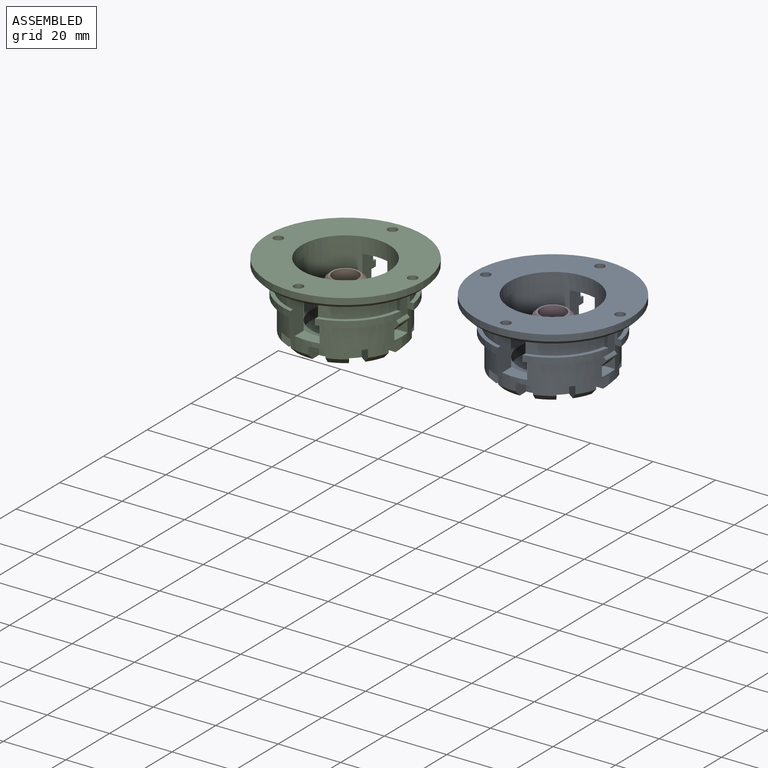
[diagram: assembled view]
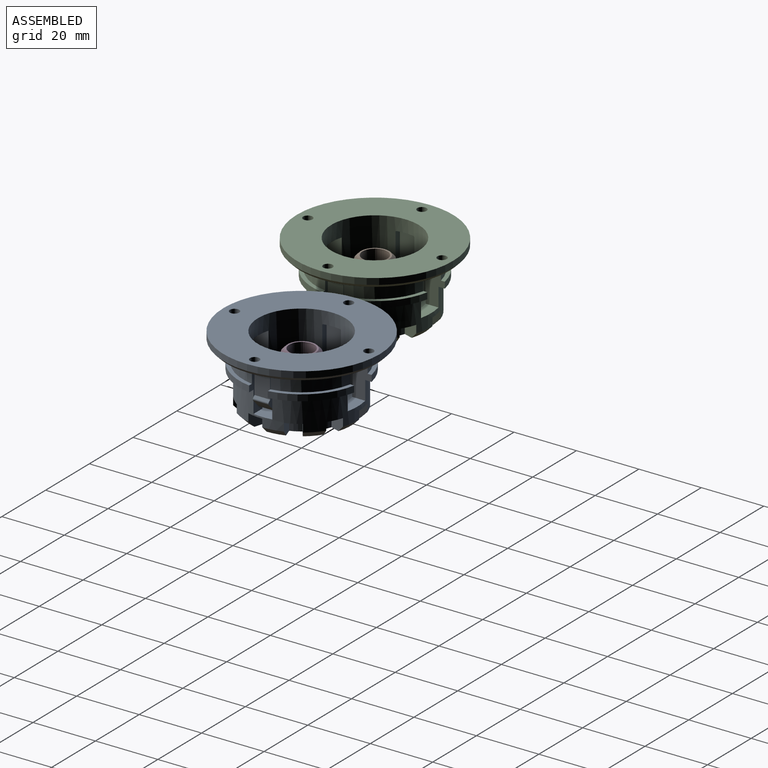
[diagram: assembled view, second angle]
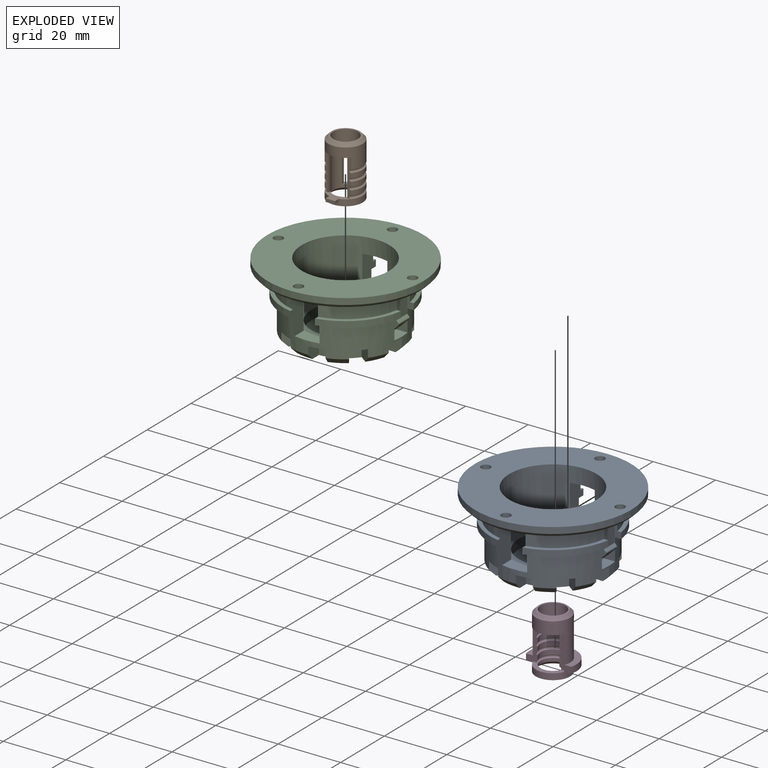
[diagram: exploded view]
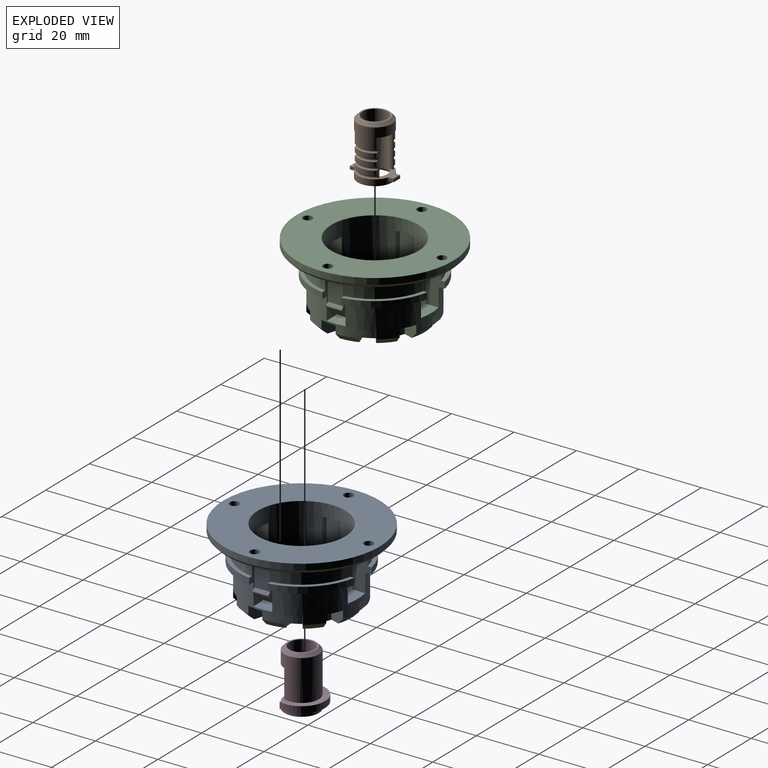
[diagram: exploded view, second angle]
ASSEMBLY  parts=4 mates=2
PART A: 125 faces, bbox 50.1x50.1x23.1 mm
  f0: cylinder r=14mm len=28mm, axis (0,0,-1), area 1219.5mm2, adj f11,f58,f61,f80,f81,f82,f83,f84
  f1: cylinder r=20mm len=16.6mm, axis (0,0,-1), area 48.8mm2, adj f2,f3,f80,f124
  f2: plane 16.6x15.77mm, normal (0,0,1), area 29.2mm2, adj f1,f16,f80,f124
  f3: plane 16.6x15.77mm, normal (0,0,-1), area 45.6mm2, adj f1,f12,f80,f124
  f4: cylinder r=20mm len=16.6mm, axis (0,0,-1), area 48.8mm2, adj f6,f7,f81,f117
  f5: cylinder r=20mm len=16.6mm, axis (0,0,-1), area 48.8mm2, adj f63,f64,f84,f118
  f6: plane 16.6x15.77mm, normal (0,0,1), area 29.2mm2, adj f4,f16,f81,f117
  f7: plane 16.6x15.77mm, normal (0,0,-1), area 45.6mm2, adj f4,f12,f81,f117
  f8: cylinder r=5.5mm len=10.58mm, axis (0,0,-1), area 28.5mm2, adj f9,f10,f111,f115
  f9: plane 32x32mm, normal (0,0,-1), area 580.2mm2, adj f8,f17,f18,f19,f20,f22,f23,f24
  f10: plane 22x22mm, normal (0,0,1), area 275.7mm2, adj f8,f17,f59,f111,f112,f113,f114,f115
  f11: plane 5.5x1.27mm, normal (0,0,-1), area 6mm2, adj f0,f93,f103,f104
  f12: cylinder r=18mm len=36mm, axis (0,0,-1), area 824.4mm2, adj f3,f7,f15,f18,f20,f21,f22,f24
  f13: cylinder r=20mm len=16.6mm, axis (0,0,-1), area 48.8mm2, adj f14,f15,f83,f123
  f14: plane 16.6x15.77mm, normal (0,0,1), area 29.2mm2, adj f13,f16,f83,f123
  f15: plane 16.6x15.77mm, normal (0,0,-1), area 45.6mm2, adj f12,f13,f83,f123
  f16: cylinder r=18.75mm len=37.5mm, axis (0,0,-1), area 582.2mm2, adj f2,f6,f14,f62,f63,f80,f81,f83
  f17: cylinder r=5.5mm len=10.58mm, axis (0,0,-1), area 28.5mm2, adj f9,f10,f113,f116
  f18: plane 5x4.5mm, normal (0,-1,0), area 20.5mm2, adj f9,f12,f19,f21,f71
  f19: cylinder r=13mm len=4.5mm, axis (0,0,-1), area 15.9mm2, adj f9,f18,f20,f21
  f20: plane 4.79x4.5mm, normal (0.29,0.96,0), area 20.5mm2, adj f9,f12,f19,f21,f70
  f21: plane 5.48x4.95mm, normal (0,0,-1), area 21.4mm2, adj f12,f18,f19,f20
  f22: plane 4.5x4.05mm, normal (0.59,-0.81,0), area 20.5mm2, adj f9,f12,f23,f25,f72
  f23: cylinder r=13mm len=4.5mm, axis (0,0,-1), area 15.9mm2, adj f9,f22,f24,f25
  f24: plane 4.73x4.5mm, normal (-0.33,0.94,0), area 20.5mm2, adj f9,f12,f23,f25,f71
  f25: plane 6.39x6.05mm, normal (0,0,-1), area 21.4mm2, adj f12,f22,f23,f24
  f26: plane 4.76x4.5mm, normal (0.95,-0.31,0), area 20.5mm2, adj f9,f12,f27,f29,f73
  f27: cylinder r=13mm len=4.5mm, axis (0,0,-1), area 15.9mm2, adj f9,f26,f28,f29
  f28: plane 4.5x4.1mm, normal (-0.82,0.57,0), area 20.5mm2, adj f9,f12,f27,f29,f72
  f29: plane 6.29x6.04mm, normal (0,0,-1), area 21.4mm2, adj f12,f26,f27,f28
  f30: plane 4.76x4.5mm, normal (0.95,0.31,0), area 20.5mm2, adj f9,f12,f31,f33,f74
  f31: cylinder r=13mm len=4.5mm, axis (0,0,-1), area 15.9mm2, adj f9,f30,f32,f33
  f32: plane 5x4.5mm, normal (-1,-0.02,0), area 20.5mm2, adj f9,f12,f31,f33,f73
  f33: plane 5.63x5.02mm, normal (0,0,-1), area 21.4mm2, adj f12,f30,f31,f32
  f34: plane 4.5x4.05mm, normal (0.59,0.81,0), area 20.5mm2, adj f9,f12,f35,f37,f75
  f35: cylinder r=13mm len=4.5mm, axis (0,0,-1), area 15.9mm2, adj f9,f34,f36,f37
  f36: plane 4.5x3.99mm, normal (-0.8,-0.6,0), area 20.5mm2, adj f9,f12,f35,f37,f74
  f37: plane 6.54x6.49mm, normal (0,0,-1), area 21.4mm2, adj f12,f34,f35,f36
  f38: plane 5x4.5mm, normal (0,1,0), area 20.5mm2, adj f9,f12,f39,f41,f76
  f39: cylinder r=13mm len=4.5mm, axis (0,0,-1), area 15.9mm2, adj f9,f38,f40,f41
  f40: plane 4.79x4.5mm, normal (-0.29,-0.96,0), area 20.5mm2, adj f9,f12,f39,f41,f75
  f41: plane 5.48x4.95mm, normal (0,0,-1), area 21.4mm2, adj f12,f38,f39,f40
  f42: plane 4.5x4.05mm, normal (-0.59,0.81,0), area 20.5mm2, adj f9,f12,f43,f45,f77
  f43: cylinder r=13mm len=4.5mm, axis (0,0,-1), area 15.9mm2, adj f9,f42,f44,f45
  f44: plane 4.73x4.5mm, normal (0.33,-0.94,0), area 20.5mm2, adj f9,f12,f43,f45,f76
  f45: plane 6.39x6.05mm, normal (0,0,-1), area 21.4mm2, adj f12,f42,f43,f44
  f46: plane 4.76x4.5mm, normal (-0.95,0.31,0), area 20.5mm2, adj f9,f12,f47,f49,f78
  f47: cylinder r=13mm len=4.5mm, axis (0,0,-1), area 15.9mm2, adj f9,f46,f48,f49
  f48: plane 4.5x4.1mm, normal (0.82,-0.57,0), area 20.5mm2, adj f9,f12,f47,f49,f77
  f49: plane 6.29x6.04mm, normal (0,0,-1), area 21.4mm2, adj f12,f46,f47,f48
  f50: plane 4.76x4.5mm, normal (-0.95,-0.31,0), area 20.5mm2, adj f9,f12,f51,f53,f79
  f51: cylinder r=13mm len=4.5mm, axis (0,0,-1), area 15.9mm2, adj f9,f50,f52,f53
  f52: plane 5x4.5mm, normal (1,0.02,0), area 20.5mm2, adj f9,f12,f51,f53,f78
  f53: plane 5.63x5.02mm, normal (0,0,-1), area 21.4mm2, adj f12,f50,f51,f52
  f54: plane 4.5x4.05mm, normal (-0.59,-0.81,0), area 20.5mm2, adj f9,f12,f55,f57,f70
  f55: cylinder r=13mm len=4.5mm, axis (0,0,-1), area 15.9mm2, adj f9,f54,f56,f57
  f56: plane 4.5x3.99mm, normal (0.8,0.6,0), area 20.5mm2, adj f9,f12,f55,f57,f79
  f57: plane 6.54x6.49mm, normal (0,0,-1), area 21.4mm2, adj f12,f54,f55,f56
  f58: plane 36x28mm, normal (0,0,1), area 283.9mm2, adj f0,f12,f59,f80,f81,f83,f84
  f59: cylinder r=11mm len=22mm, axis (0,0,-1), area 207.3mm2, adj f10,f58
  f60: cylinder r=25mm len=50mm, axis (0,0,-1), area 314.2mm2, adj f61,f69
  f61: plane 50x50mm, normal (0,0,1), area 1319.5mm2, adj f0,f60,f65,f66,f67,f68
  f62: plane 48x48mm, normal (0,0,-1), area 626.6mm2, adj f16,f69,f107,f108,f109,f110
  f63: plane 16.6x15.77mm, normal (0,0,1), area 29.2mm2, adj f5,f16,f84,f118
  f64: plane 16.6x15.77mm, normal (0,0,-1), area 45.6mm2, adj f5,f12,f84,f118
  f65: cylinder r=1.5mm len=3mm, axis (0,0,-1), area 18.8mm2, adj f61,f107
  f66: cylinder r=1.5mm len=3mm, axis (0,0,-1), area 18.8mm2, adj f61,f108
  f67: cylinder r=1.5mm len=3mm, axis (0,0,-1), area 18.8mm2, adj f61,f109
  f68: cylinder r=1.5mm len=3mm, axis (0,0,-1), area 18.8mm2, adj f61,f110
  f69: cone r=25mm half-angle=45deg, axis (0,0,1), area 217.7mm2, adj f60,f62
  f70: cone r=18mm half-angle=45deg, axis (0,0,1), area 16.9mm2, adj f9,f12,f20,f54
  f71: cone r=18mm half-angle=45deg, axis (0,0,1), area 16.9mm2, adj f9,f12,f18,f24
  f72: cone r=18mm half-angle=45deg, axis (0,0,1), area 16.9mm2, adj f9,f12,f22,f28
  f73: cone r=18mm half-angle=45deg, axis (0,0,1), area 16.9mm2, adj f9,f12,f26,f32
  f74: cone r=18mm half-angle=45deg, axis (0,0,1), area 16.9mm2, adj f9,f12,f30,f36
  f75: cone r=18mm half-angle=45deg, axis (0,0,1), area 16.9mm2, adj f9,f12,f34,f40
  f76: cone r=18mm half-angle=45deg, axis (0,0,1), area 16.9mm2, adj f9,f12,f38,f44
  f77: cone r=18mm half-angle=45deg, axis (0,0,1), area 16.9mm2, adj f9,f12,f42,f48
  f78: cone r=18mm half-angle=45deg, axis (0,0,1), area 16.9mm2, adj f9,f12,f46,f52
  f79: cone r=18mm half-angle=45deg, axis (0,0,1), area 16.9mm2, adj f9,f12,f50,f56
  f80: plane 13.75x6.1mm, normal (0,1,0), area 63.7mm2, adj f0,f1,f2,f3,f12,f16,f58,f103
  f81: plane 13.75x6.1mm, normal (0,-1,0), area 63.7mm2, adj f0,f4,f6,f7,f12,f16,f58,f104
  f82: plane 5.5x1.27mm, normal (0,0,-1), area 6mm2, adj f0,f88,f105,f106
  f83: plane 13.75x6.1mm, normal (0,1,0), area 63.7mm2, adj f0,f12,f13,f14,f15,f16,f58,f105
  f84: plane 13.75x6.1mm, normal (0,-1,0), area 63.7mm2, adj f0,f5,f12,f16,f58,f63,f64,f106
  f85: plane 12.11x3.86mm, normal (0,-1,0), area 35.4mm2, adj f87,f88,f89,f95,f96,f100,f102,f105
  f86: plane 12.1x3.85mm, normal (0,1,0), area 35.4mm2, adj f87,f88,f89,f95,f96,f100,f102,f106
  f87: plane 5.89x5mm, normal (1,0,0), area 28.7mm2, adj f85,f86,f96,f102
  f88: plane 12.29x5.5mm, normal (-1,0,0), area 61.5mm2, adj f82,f85,f86,f89,f105,f106
  f89: plane 5x1mm, normal (0,0,-1), area 5mm2, adj f85,f86,f88,f95
  f90: plane 12.1x3.85mm, normal (0,-1,0), area 35.4mm2, adj f92,f93,f94,f97,f98,f99,f101,f103
  f91: plane 12.11x3.86mm, normal (0,1,0), area 35.4mm2, adj f92,f93,f94,f97,f98,f99,f101,f104
  f92: plane 5.89x5mm, normal (-1,0,0), area 28.7mm2, adj f90,f91,f97,f101
  f93: plane 12.29x5.5mm, normal (1,0,0), area 61.5mm2, adj f11,f90,f91,f94,f103,f104
  f94: plane 5x1mm, normal (0,0,-1), area 5mm2, adj f90,f91,f93,f98
  f95: plane 5x2.65mm, normal (0.71,0,-0.71), area 18.7mm2, adj f85,f86,f89,f100
  f96: plane 5x0.65mm, normal (0.71,0,0.71), area 4.6mm2, adj f85,f86,f87,f100
  f97: plane 5x0.65mm, normal (-0.71,0,0.71), area 4.6mm2, adj f90,f91,f92,f99
  f98: plane 5x2.65mm, normal (-0.71,0,-0.71), area 18.7mm2, adj f90,f91,f94,f99
  f99: cylinder r=0.5mm len=5mm, axis (0,1,0), area 3.9mm2, adj f90,f91,f97,f98
  f100: cylinder r=0.5mm len=5mm, axis (0,1,0), area 3.9mm2, adj f85,f86,f95,f96
  f101: bspline ~6.82x2.63mm, area 13.5mm2, adj f16,f90,f91,f92,f103,f104
  f102: bspline ~6.82x2.63mm, area 13.5mm2, adj f16,f85,f86,f87,f105,f106
  f103: cylinder r=0.25mm len=4.87mm, axis (-1,0,0), area 3.3mm2, adj f0,f11,f16,f80,f90,f93,f101
  f104: cylinder r=0.25mm len=4.87mm, axis (1,0,0), area 3.3mm2, adj f0,f11,f16,f81,f91,f93,f101
  f105: cylinder r=0.25mm len=4.87mm, axis (-1,0,0), area 3.3mm2, adj f0,f16,f82,f83,f85,f88,f102
  f106: cylinder r=0.25mm len=4.87mm, axis (1,0,0), area 3.3mm2, adj f0,f16,f82,f84,f86,f88,f102
  f107: cone r=1.5mm half-angle=45deg, axis (0,0,-1), area 17.8mm2, adj f62,f65
  f108: cone r=1.5mm half-angle=45deg, axis (0,0,-1), area 17.8mm2, adj f62,f66
  f109: cone r=1.5mm half-angle=45deg, axis (0,0,-1), area 17.8mm2, adj f62,f67
  f110: cone r=1.5mm half-angle=45deg, axis (0,0,-1), area 17.8mm2, adj f62,f68
  f111: plane 2x1.71mm, normal (-1,0,0), area 3.4mm2, adj f8,f9,f10,f112
  f112: plane 3x2mm, normal (0,-1,0), area 6mm2, adj f9,f10,f111,f113
  f113: plane 2x1.71mm, normal (1,0,0), area 3.4mm2, adj f9,f10,f17,f112
  f114: plane 3x2mm, normal (0,1,0), area 6mm2, adj f9,f10,f115,f116
  f115: plane 2x1.71mm, normal (-1,0,0), area 3.4mm2, adj f8,f9,f10,f114
  f116: plane 2x1.71mm, normal (1,0,0), area 3.4mm2, adj f9,f10,f17,f114
  f117: plane 12x6.18mm, normal (1,0,0), area 56.8mm2, adj f0,f4,f6,f7,f12,f16,f119,f120
  f118: plane 12x6.18mm, normal (-1,0,0), area 56.8mm2, adj f0,f5,f12,f16,f63,f64,f119,f120
  f119: plane 8x5.33mm, normal (0,0,-1), area 38.4mm2, adj f0,f16,f117,f118
  f120: plane 8x4.58mm, normal (0,0,1), area 32.3mm2, adj f0,f12,f117,f118
  f121: plane 8x4.58mm, normal (0,0,1), area 32.3mm2, adj f0,f12,f123,f124
  f122: plane 8x5.33mm, normal (0,0,-1), area 38.4mm2, adj f0,f16,f123,f124
  f123: plane 12x6.18mm, normal (-1,0,0), area 56.8mm2, adj f0,f12,f13,f14,f15,f16,f121,f122
  f124: plane 12x6.18mm, normal (1,0,0), area 56.8mm2, adj f0,f1,f2,f3,f12,f16,f121,f122
PART B: 41 faces, bbox 12.7x14x18 mm
  f0: cylinder r=5.5mm len=11mm, axis (0,0,-1), area 63mm2, adj f9,f16,f22,f28,f32,f33,f34,f36
  f1: cylinder r=5.5mm len=7mm, axis (0,0,-1), area 11.4mm2, adj f13,f19,f31,f32
  f2: cylinder r=5.5mm len=7mm, axis (0,0,-1), area 11.4mm2, adj f14,f20,f27,f28
  f3: cylinder r=5.5mm len=7mm, axis (0,0,-1), area 11.4mm2, adj f13,f19,f30,f31
  f4: cylinder r=5.5mm len=7mm, axis (0,0,-1), area 11.4mm2, adj f14,f20,f26,f27
  f5: cylinder r=5.5mm len=7mm, axis (0,0,-1), area 11.4mm2, adj f13,f19,f29,f30
  f6: cylinder r=5.5mm len=7mm, axis (0,0,-1), area 11.4mm2, adj f14,f20,f25,f26
  f7: cylinder r=5.5mm len=11mm, axis (0,0,-1), area 156.8mm2, adj f12,f13,f14,f15,f19,f20,f21,f25
  f8: plane 9x9mm, normal (0,0,1), area 13.4mm2, adj f10,f12
  f9: plane 11x11mm, normal (0,0,-1), area 16.5mm2, adj f0,f11
  f10: cylinder r=4mm len=17mm, axis (0,0,-1), area 264.4mm2, adj f8,f11,f15,f16,f17,f18,f21,f22
  f11: cone r=5mm half-angle=45deg, axis (0,0,-1), area 40mm2, adj f9,f10
  f12: cone r=4.5mm half-angle=45deg, axis (0,0,-1), area 44.4mm2, adj f7,f8
  f13: plane 12x1.24mm, normal (0,1,0), area 12.8mm2, adj f1,f3,f5,f7,f15,f16,f17,f29
  f14: plane 12x1.24mm, normal (0,1,0), area 12.8mm2, adj f2,f4,f6,f7,f15,f16,f18,f25
  f15: plane 8.49x2.85mm, normal (0,0,-1), area 11.3mm2, adj f7,f10,f13,f14,f17,f18
  f16: plane 8.49x4.35mm, normal (0,0,1), area 16mm2, adj f0,f10,f13,f14,f17,f18,f37,f38
  f17: plane 12x0.85mm, normal (-1,0,0), area 10.3mm2, adj f10,f13,f15,f16
  f18: plane 12x0.85mm, normal (1,0,0), area 10.3mm2, adj f10,f14,f15,f16
  f19: plane 12x1.24mm, normal (0,-1,0), area 12.8mm2, adj f1,f3,f5,f7,f21,f22,f23,f29
  f20: plane 12x1.24mm, normal (0,-1,0), area 12.8mm2, adj f2,f4,f6,f7,f21,f22,f24,f25
  f21: plane 8.49x2.85mm, normal (0,0,-1), area 11.3mm2, adj f7,f10,f19,f20,f23,f24
  f22: plane 8.49x4.35mm, normal (0,0,1), area 16mm2, adj f0,f10,f19,f20,f23,f24,f33,f34
  f23: plane 12x0.85mm, normal (-1,0,0), area 10.3mm2, adj f10,f19,f21,f22
  f24: plane 12x0.85mm, normal (1,0,0), area 10.3mm2, adj f10,f20,f21,f22
  f25: torus R=5.5mm, axis (0,0,-1), area 12.1mm2, adj f6,f7,f14,f20
  f26: torus R=5.5mm, axis (0,0,-1), area 12.1mm2, adj f4,f6,f14,f20
  f27: torus R=5.5mm, axis (0,0,-1), area 12.1mm2, adj f2,f4,f14,f20
  f28: torus R=5.5mm, axis (0,0,-1), area 12.1mm2, adj f0,f2,f14,f20
  f29: torus R=5.5mm, axis (0,0,-1), area 12.1mm2, adj f5,f7,f13,f19
  f30: torus R=5.5mm, axis (0,0,-1), area 12.1mm2, adj f3,f5,f13,f19
  f31: torus R=5.5mm, axis (0,0,-1), area 12.1mm2, adj f1,f3,f13,f19
  f32: torus R=5.5mm, axis (0,0,-1), area 12.1mm2, adj f0,f1,f13,f19
  f33: plane 1.71x1mm, normal (1,0,0), area 1.7mm2, adj f0,f22,f35,f36
  f34: plane 1.71x1mm, normal (-1,0,0), area 1.7mm2, adj f0,f22,f35,f36
  f35: plane 3x1mm, normal (0,-1,0), area 3mm2, adj f22,f33,f34,f36
  f36: plane 3x1.71mm, normal (0,0,-1), area 4.7mm2, adj f0,f33,f34,f35
  f37: plane 1.71x1mm, normal (1,0,0), area 1.7mm2, adj f0,f16,f39,f40
  f38: plane 1.71x1mm, normal (-1,0,0), area 1.7mm2, adj f0,f16,f39,f40
  f39: plane 3x1mm, normal (0,1,0), area 3mm2, adj f16,f37,f38,f40
  f40: plane 3x1.71mm, normal (0,0,-1), area 4.7mm2, adj f0,f37,f38,f39
PART C: same geometry as A
PART D: 24 faces, bbox 15x13x18 mm
  f0: cylinder r=5.5mm len=11mm, axis (0,0,-1), area 69.2mm2, adj f12,f16,f17,f18,f21,f22,f23
  f1: cylinder r=4mm len=8mm, axis (0,0,-1), area 167.6mm2, adj f2,f11,f15,f16,f17
  f2: torus R=4mm, axis (0,0,-1), area 27.8mm2, adj f1,f3,f16,f17
  f3: cylinder r=4mm len=8mm, axis (0,0,-1), area 25.1mm2, adj f2,f4,f16,f17
  f4: torus R=4mm, axis (0,0,-1), area 27.8mm2, adj f3,f5,f16,f17
  f5: cylinder r=4mm len=8mm, axis (0,0,-1), area 25.1mm2, adj f4,f6,f16,f17
  f6: torus R=4mm, axis (0,0,-1), area 27.8mm2, adj f5,f7,f16,f17
  f7: cylinder r=4mm len=8mm, axis (0,0,-1), area 25.1mm2, adj f6,f8,f16,f17
  f8: torus R=4mm, axis (0,0,-1), area 28.2mm2, adj f7,f9,f16,f17,f22,f23
  f9: cylinder r=4mm len=8mm, axis (0,0,-1), area 25.1mm2, adj f8,f13,f18
  f10: cylinder r=5.5mm len=13mm, axis (0,0,-1), area 330.6mm2, adj f14,f15,f16,f17,f20
  f11: plane 9x9mm, normal (0,0,1), area 13.4mm2, adj f1,f14
  f12: plane 11x11mm, normal (0,0,-1), area 16.5mm2, adj f0,f13
  f13: cone r=5mm half-angle=45deg, axis (0,0,-1), area 40mm2, adj f9,f12
  f14: cone r=4.5mm half-angle=45deg, axis (0,0,-1), area 44.4mm2, adj f10,f11
  f15: plane 10.25x3.5mm, normal (0,0,-1), area 16.2mm2, adj f1,f10,f16,f17
  f16: plane 11x3.76mm, normal (0,-1,0), area 20.1mm2, adj f0,f1,f2,f3,f4,f5,f6,f7
  f17: plane 11x3.76mm, normal (0,-1,0), area 20.1mm2, adj f0,f1,f2,f3,f4,f5,f6,f7
  f18: plane 9.8x3mm, normal (0,0,1), area 14.5mm2, adj f0,f9,f22,f23
  f19: cylinder r=7.5mm len=15mm, axis (0,0,-1), area 55.2mm2, adj f16,f17,f20,f21
  f20: plane 15x9.5mm, normal (0,0,1), area 49mm2, adj f10,f16,f17,f19
  f21: plane 15x9.5mm, normal (0,0,-1), area 49mm2, adj f0,f16,f17,f19
  f22: cylinder r=0.5mm len=2mm, axis (1,0,0), area 1mm2, adj f0,f8,f16,f18
  f23: cylinder r=0.5mm len=2mm, axis (1,0,0), area 1mm2, adj f0,f8,f17,f18
PLACE A t=(15.55,14.94,-7.41)mm
PLACE B t=(-40.06,-0.53,-5.79)mm
PLACE C t=(-40.06,-0.53,-5.79)mm
PLACE D t=(15.55,14.94,-7.41)mm
MATE fastened C.f19 <-> B.f0  axis (0,0,-1) through (-40.06,-0.53,-5.79)mm
MATE fastened A.f8 <-> D.f0  axis (0,0,-1) through (15.55,14.94,-7.41)mm
